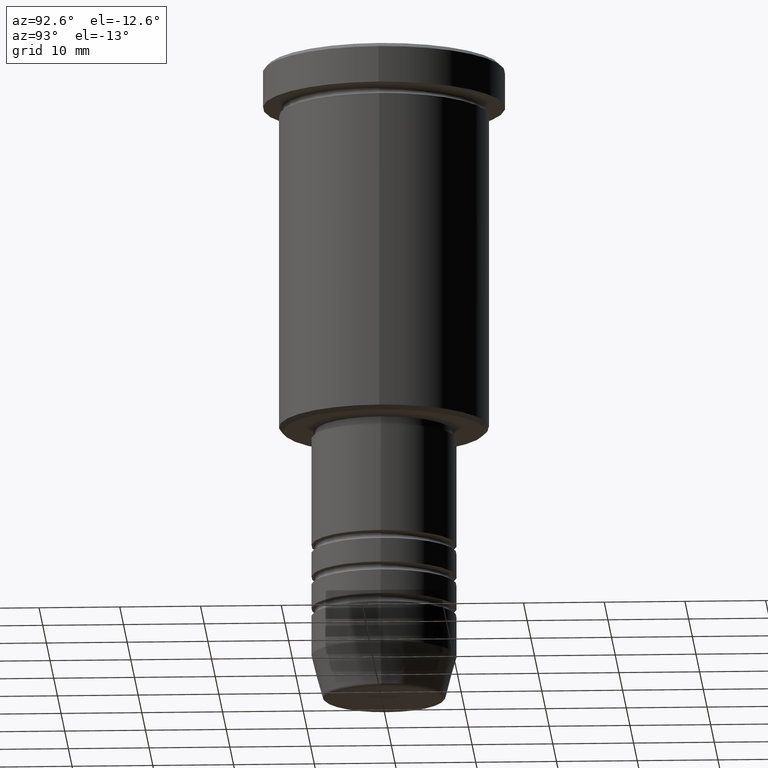
[diagram: clean part render]
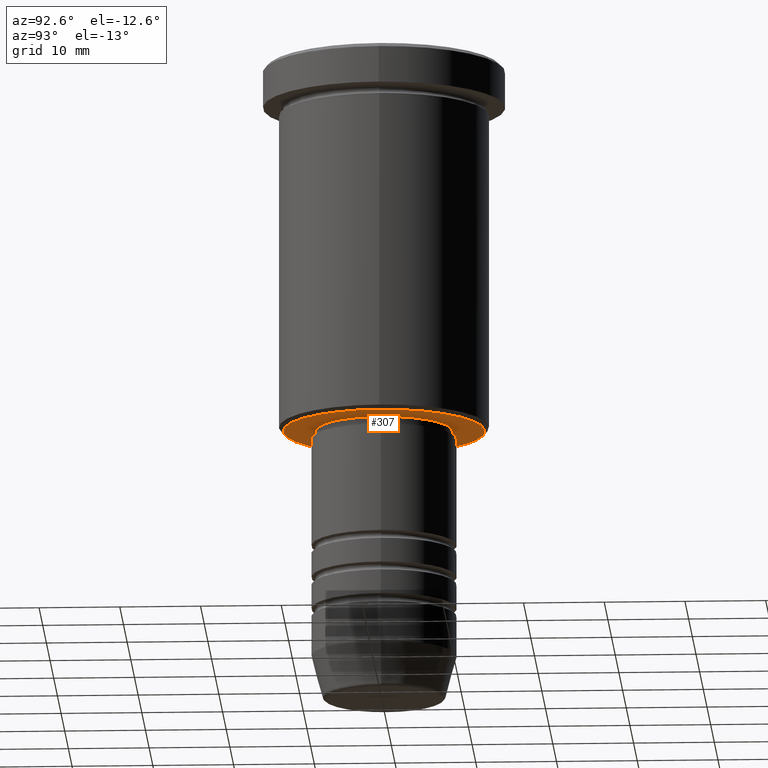
[diagram: same view with one face highlighted and labeled with its STEP entity id]
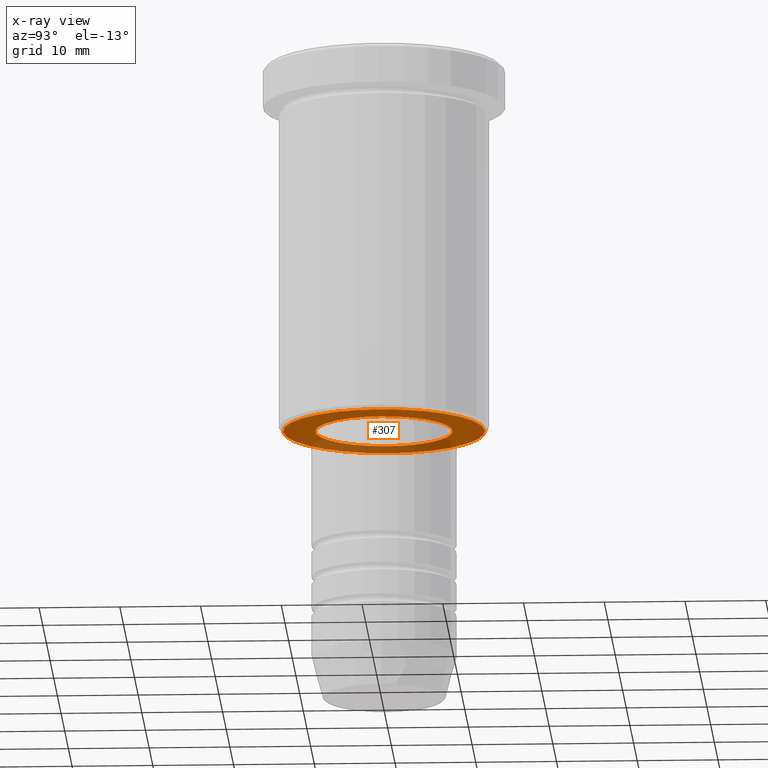
[diagram: x-ray of the same camera — body ghosted, the highlighted face saturated]
A machine part, auxiliary view. The second image highlights one B-rep face of the part: STEP entity #307.
The next image is the same camera in x-ray: the body ghosted, the highlighted face saturated — about 29% of this face is hidden behind the body in this view.
In plain terms, the highlighted planar face has unit normal (0, 0, -1).
Its self-contained STEP definition (entity closure, byte-faithful):
#2 = AXIS2_PLACEMENT_3D ( 'NONE', #234, #696, #82 ) ;
#37 = EDGE_CURVE ( 'NONE', #913, #682, #839, .T. ) ;
#58 = DIRECTION ( 'NONE',  ( -1.000000000000000000, 0.000000000000000000, 0.000000000000000000 ) ) ;
#61 = CIRCLE ( 'NONE', #2, 12.50000000000001066 ) ;
#72 = CARTESIAN_POINT ( 'NONE',  ( 0.000000000000000000, 0.000000000000000000, -46.00000000000000000 ) ) ;
#78 = DIRECTION ( 'NONE',  ( 1.000000000000000000, 0.000000000000000000, 0.000000000000000000 ) ) ;
#82 = DIRECTION ( 'NONE',  ( -1.000000000000000000, 0.000000000000000000, 0.000000000000000000 ) ) ;
#222 = CIRCLE ( 'NONE', #372, 12.50000000000001066 ) ;
#234 = CARTESIAN_POINT ( 'NONE',  ( 0.000000000000000000, 0.000000000000000000, -46.00000000000000000 ) ) ;
#251 = CARTESIAN_POINT ( 'NONE',  ( -8.500000000000000000, 1.040949779275250140E-15, -46.00000000000000000 ) ) ;
#269 = ORIENTED_EDGE ( 'NONE', *, *, #975, .T. ) ;
#307 = ADVANCED_FACE ( 'NONE', ( #796, #1171 ), #345, .T. ) ;
#324 = AXIS2_PLACEMENT_3D ( 'NONE', #72, #628, #78 ) ;
#345 = PLANE ( 'NONE',  #821 ) ;
#349 = EDGE_LOOP ( 'NONE', ( #907, #269 ) ) ;
#368 = CARTESIAN_POINT ( 'NONE',  ( -12.50000000000001066, 1.561424668912876097E-15, -46.00000000000000000 ) ) ;
#372 = AXIS2_PLACEMENT_3D ( 'NONE', #582, #572, #58 ) ;
#403 = DIRECTION ( 'NONE',  ( 1.000000000000000000, 0.000000000000000000, 0.000000000000000000 ) ) ;
#445 = EDGE_CURVE ( 'NONE', #682, #913, #551, .T. ) ;
#494 = CARTESIAN_POINT ( 'NONE',  ( 12.50000000000001066, 0.000000000000000000, -46.00000000000000000 ) ) ;
#499 = EDGE_LOOP ( 'NONE', ( #976, #718 ) ) ;
#551 = CIRCLE ( 'NONE', #324, 8.500000000000000000 ) ;
#572 = DIRECTION ( 'NONE',  ( 0.000000000000000000, 0.000000000000000000, -1.000000000000000000 ) ) ;
#582 = CARTESIAN_POINT ( 'NONE',  ( 0.000000000000000000, 0.000000000000000000, -46.00000000000000000 ) ) ;
#613 = DIRECTION ( 'NONE',  ( 0.000000000000000000, 0.000000000000000000, -1.000000000000000000 ) ) ;
#628 = DIRECTION ( 'NONE',  ( -0.000000000000000000, -0.000000000000000000, 1.000000000000000000 ) ) ;
#682 = VERTEX_POINT ( 'NONE', #845 ) ;
#687 = VERTEX_POINT ( 'NONE', #368 ) ;
#696 = DIRECTION ( 'NONE',  ( 0.000000000000000000, 0.000000000000000000, -1.000000000000000000 ) ) ;
#699 = CARTESIAN_POINT ( 'NONE',  ( 0.000000000000000000, 13.00000000000000000, -46.00000000000000000 ) ) ;
#718 = ORIENTED_EDGE ( 'NONE', *, *, #37, .T. ) ;
#749 = VERTEX_POINT ( 'NONE', #494 ) ;
#758 = AXIS2_PLACEMENT_3D ( 'NONE', #787, #1156, #403 ) ;
#787 = CARTESIAN_POINT ( 'NONE',  ( 0.000000000000000000, 0.000000000000000000, -46.00000000000000000 ) ) ;
#796 = FACE_OUTER_BOUND ( 'NONE', #349, .T. ) ;
#821 = AXIS2_PLACEMENT_3D ( 'NONE', #699, #613, #981 ) ;
#839 = CIRCLE ( 'NONE', #758, 8.500000000000000000 ) ;
#841 = EDGE_CURVE ( 'NONE', #749, #687, #222, .T. ) ;
#845 = CARTESIAN_POINT ( 'NONE',  ( 8.500000000000000000, 0.000000000000000000, -46.00000000000000000 ) ) ;
#907 = ORIENTED_EDGE ( 'NONE', *, *, #841, .T. ) ;
#913 = VERTEX_POINT ( 'NONE', #251 ) ;
#975 = EDGE_CURVE ( 'NONE', #687, #749, #61, .T. ) ;
#976 = ORIENTED_EDGE ( 'NONE', *, *, #445, .T. ) ;
#981 = DIRECTION ( 'NONE',  ( -1.000000000000000000, 0.000000000000000000, -0.000000000000000000 ) ) ;
#1156 = DIRECTION ( 'NONE',  ( -0.000000000000000000, -0.000000000000000000, 1.000000000000000000 ) ) ;
#1171 = FACE_BOUND ( 'NONE', #499, .T. ) ;